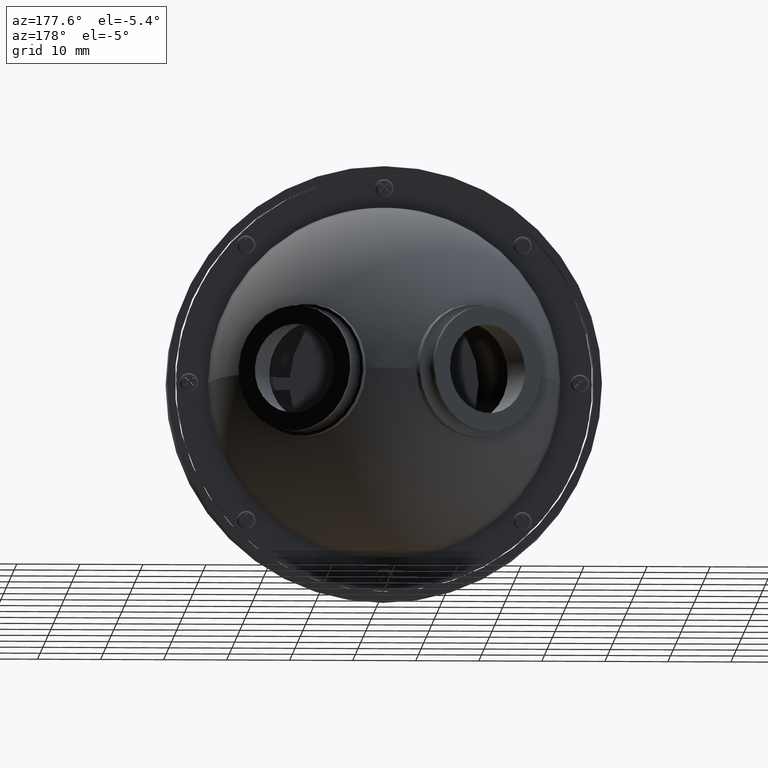
[diagram: clean part render]
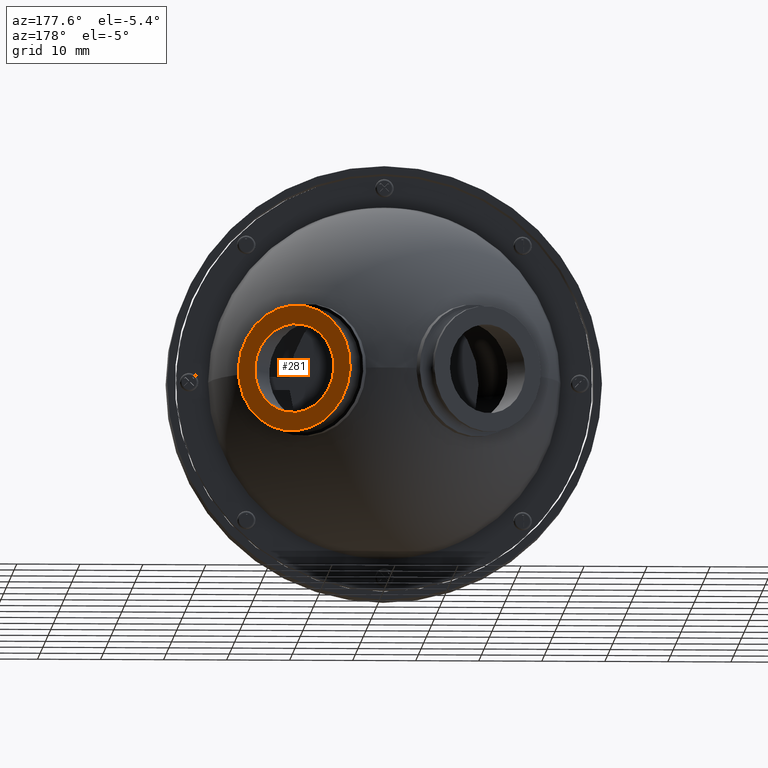
[diagram: same view with one face highlighted and labeled with its STEP entity id]
A machine part, auxiliary view. The second image highlights one B-rep face of the part: STEP entity #281.
In plain terms, the highlighted planar face has unit normal (0.5, 0.866, 0).
Its self-contained STEP definition (entity closure, byte-faithful):
#281 = ADVANCED_FACE ( 'NONE', ( #1469, #6436 ), #3974, .T. ) ;
#366 = DIRECTION ( 'NONE',  ( 0.4999999999999975575, 0.8660254037844400399, -3.081487911019577365E-33 ) ) ;
#519 = CARTESIAN_POINT ( 'NONE',  ( 23.49743390609227234, 8.816625110023846190, -7.055017501242880407 ) ) ;
#594 = CIRCLE ( 'NONE', #4276, 7.064285714285714057 ) ;
#671 = EDGE_LOOP ( 'NONE', ( #3432, #4198 ) ) ;
#759 = EDGE_CURVE ( 'NONE', #7139, #5079, #3722, .T. ) ;
#804 = DIRECTION ( 'NONE',  ( 0.04434728248666973405, -0.02560391548150698152, 0.9986880183761410734 ) ) ;
#1049 = DIRECTION ( 'NONE',  ( -0.4999999999999975575, -0.8660254037844400399, 3.081487911019577365E-33 ) ) ;
#1442 = EDGE_CURVE ( 'NONE', #4898, #7202, #3471, .T. ) ;
#1469 = FACE_BOUND ( 'NONE', #671, .T. ) ;
#1744 = CARTESIAN_POINT ( 'NONE',  ( 23.81071578023024315, 8.635751735658059758, 7.305756496477038059E-32 ) ) ;
#1817 = DIRECTION ( 'NONE',  ( 0.04434728248667049039, -0.02560391548150741173, 0.9986880183761409624 ) ) ;
#2176 = AXIS2_PLACEMENT_3D ( 'NONE', #2906, #366, #4149 ) ;
#2251 = DIRECTION ( 'NONE',  ( 0.4999999999999975020, 0.8660254037844400399, 0.000000000000000000 ) ) ;
#2906 = CARTESIAN_POINT ( 'NONE',  ( 23.81071578023024315, 8.635751735658059758, 7.305756496477038059E-32 ) ) ;
#3432 = ORIENTED_EDGE ( 'NONE', *, *, #7839, .T. ) ;
#3471 = CIRCLE ( 'NONE', #2176, 10.00000000000000000 ) ;
#3710 = CIRCLE ( 'NONE', #4756, 10.00000000000000000 ) ;
#3722 = CIRCLE ( 'NONE', #5168, 7.064285714285714057 ) ;
#3825 = DIRECTION ( 'NONE',  ( 0.4999999999999975575, 0.8660254037844400399, -3.081487911019577365E-33 ) ) ;
#3953 = CARTESIAN_POINT ( 'NONE',  ( 24.25418860509694596, 8.379712580842989311, 9.986880183761408958 ) ) ;
#3974 = PLANE ( 'NONE',  #7519 ) ;
#4149 = DIRECTION ( 'NONE',  ( 0.04434728248666960915, -0.02560391548150700580, 0.9986880183761408514 ) ) ;
#4198 = ORIENTED_EDGE ( 'NONE', *, *, #759, .T. ) ;
#4209 = DIRECTION ( 'NONE',  ( 0.04434728248666949812, -0.02560391548150691907, 0.9986880183761409624 ) ) ;
#4276 = AXIS2_PLACEMENT_3D ( 'NONE', #5037, #5581, #1817 ) ;
#4756 = AXIS2_PLACEMENT_3D ( 'NONE', #5885, #3825, #5184 ) ;
#4815 = EDGE_CURVE ( 'NONE', #7202, #4898, #3710, .T. ) ;
#4894 = EDGE_LOOP ( 'NONE', ( #5159, #6848 ) ) ;
#4898 = VERTEX_POINT ( 'NONE', #5759 ) ;
#5037 = CARTESIAN_POINT ( 'NONE',  ( 23.81071578023024315, 8.635751735658059758, 7.305756496477038059E-32 ) ) ;
#5079 = VERTEX_POINT ( 'NONE', #519 ) ;
#5159 = ORIENTED_EDGE ( 'NONE', *, *, #1442, .T. ) ;
#5168 = AXIS2_PLACEMENT_3D ( 'NONE', #1744, #1049, #4209 ) ;
#5184 = DIRECTION ( 'NONE',  ( 0.04434728248666960915, -0.02560391548150700580, 0.9986880183761408514 ) ) ;
#5581 = DIRECTION ( 'NONE',  ( -0.4999999999999975575, -0.8660254037844400399, 3.081487911019577365E-33 ) ) ;
#5759 = CARTESIAN_POINT ( 'NONE',  ( 23.36724295536354745, 8.891790890473130204, -9.986880183761408958 ) ) ;
#5795 = CARTESIAN_POINT ( 'NONE',  ( 24.12399765436822108, 8.454878361292269773, 7.055017501242880407 ) ) ;
#5885 = CARTESIAN_POINT ( 'NONE',  ( 23.81071578023024315, 8.635751735658059758, 7.305756496477038059E-32 ) ) ;
#6436 = FACE_OUTER_BOUND ( 'NONE', #4894, .T. ) ;
#6848 = ORIENTED_EDGE ( 'NONE', *, *, #4815, .T. ) ;
#7139 = VERTEX_POINT ( 'NONE', #5795 ) ;
#7202 = VERTEX_POINT ( 'NONE', #3953 ) ;
#7519 = AXIS2_PLACEMENT_3D ( 'NONE', #7865, #2251, #804 ) ;
#7839 = EDGE_CURVE ( 'NONE', #5079, #7139, #594, .T. ) ;
#7865 = CARTESIAN_POINT ( 'NONE',  ( 23.81071578023024315, 8.635751735658059758, 7.305756496477038059E-32 ) ) ;